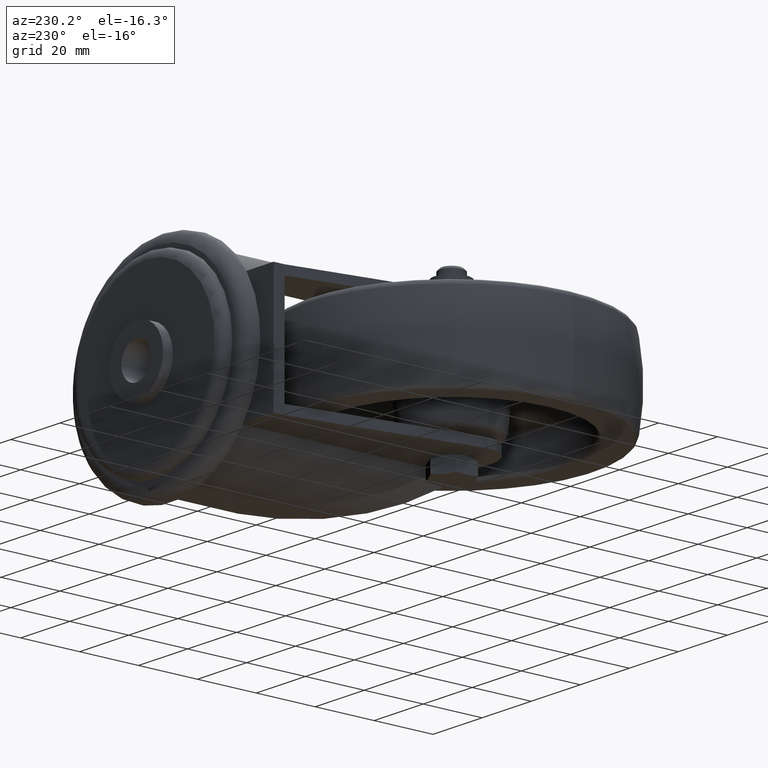
[diagram: clean part render]
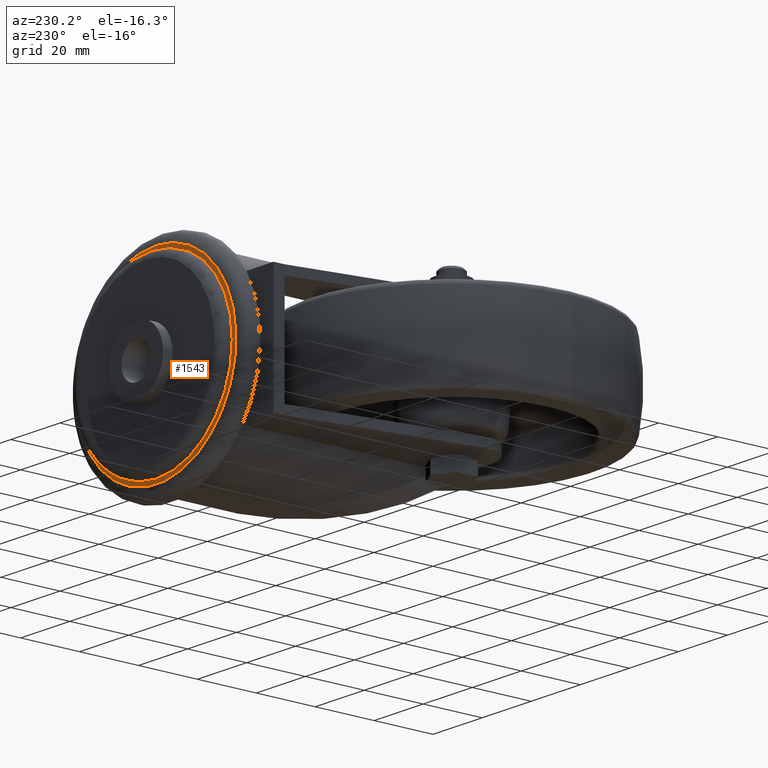
[diagram: same view with one face highlighted and labeled with its STEP entity id]
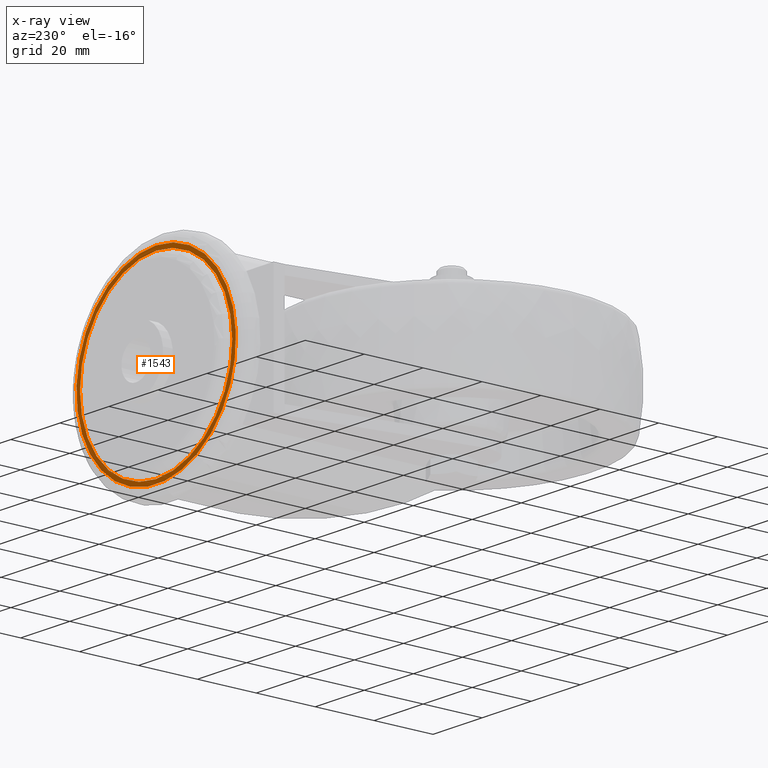
[diagram: x-ray of the same camera — body ghosted, the highlighted face saturated]
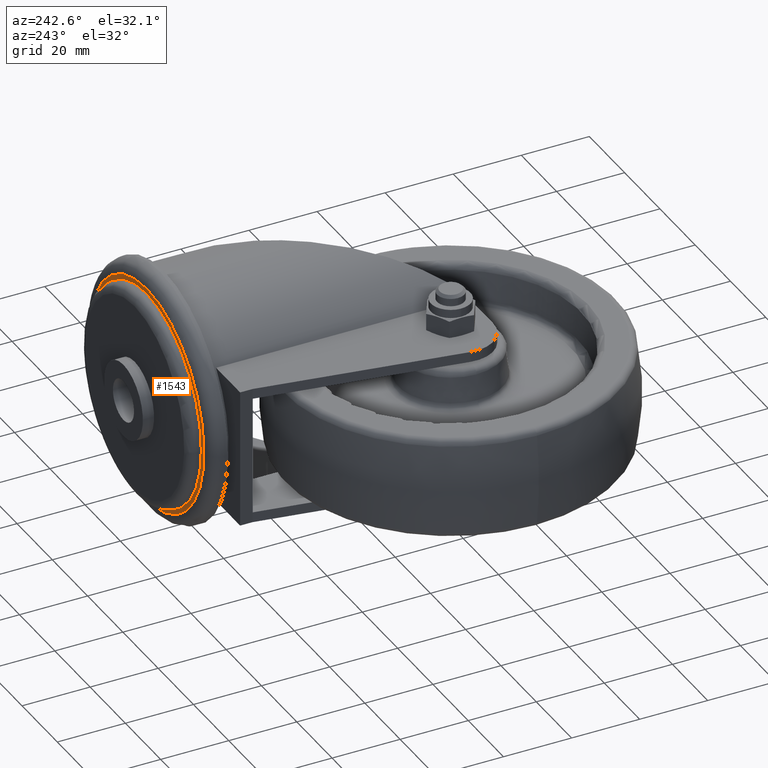
[diagram: same view with one face highlighted and labeled with its STEP entity id]
A machine part, auxiliary view. The second image highlights one B-rep face of the part: STEP entity #1543.
The next image is the same camera in x-ray: the body ghosted, the highlighted face saturated — about 0% of this face is hidden behind the body in this view.
A second angle (auxiliary view) of the same face is appended — the face is thin or edge-on in the first view.
In plain terms, the highlighted planar face has unit normal (0, -1, 0).
Its self-contained STEP definition (entity closure, byte-faithful):
#151=FACE_BOUND('',#341,.T.);
#176=PLANE('',#1785);
#232=FACE_OUTER_BOUND('',#340,.T.);
#340=EDGE_LOOP('',(#1130));
#341=EDGE_LOOP('',(#1131));
#466=CIRCLE('',#1784,31.025);
#467=CIRCLE('',#1786,32.5);
#726=VERTEX_POINT('',#2613);
#727=VERTEX_POINT('',#2617);
#881=EDGE_CURVE('',#726,#726,#466,.T.);
#883=EDGE_CURVE('',#727,#727,#467,.T.);
#1130=ORIENTED_EDGE('',*,*,#883,.F.);
#1131=ORIENTED_EDGE('',*,*,#881,.T.);
#1543=ADVANCED_FACE('',(#232,#151),#176,.F.);
#1784=AXIS2_PLACEMENT_3D('',#2614,#2078,#2079);
#1785=AXIS2_PLACEMENT_3D('',#2616,#2081,#2082);
#1786=AXIS2_PLACEMENT_3D('',#2618,#2083,#2084);
#2078=DIRECTION('center_axis',(0.,-1.,0.));
#2079=DIRECTION('ref_axis',(0.,0.,-1.));
#2081=DIRECTION('center_axis',(0.,-1.,0.));
#2082=DIRECTION('ref_axis',(0.,0.,-1.));
#2083=DIRECTION('center_axis',(0.,-1.,0.));
#2084=DIRECTION('ref_axis',(0.,0.,-1.));
#2613=CARTESIAN_POINT('',(35.,71.2,31.025));
#2614=CARTESIAN_POINT('Origin',(35.,71.2,0.));
#2616=CARTESIAN_POINT('Origin',(66.025,71.2,0.));
#2617=CARTESIAN_POINT('',(35.,71.2,32.5));
#2618=CARTESIAN_POINT('Origin',(35.,71.2,0.));